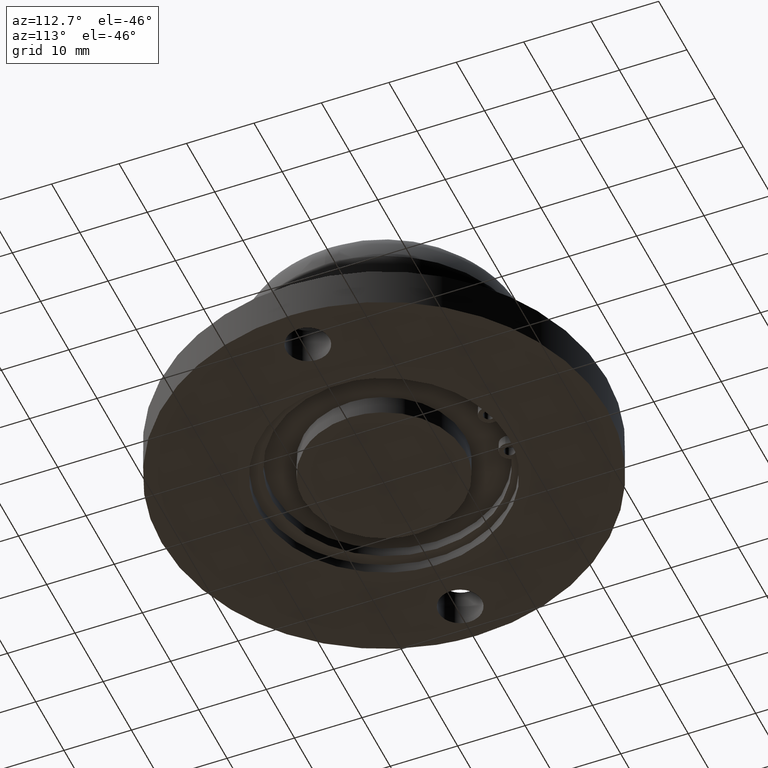
[diagram: clean part render]
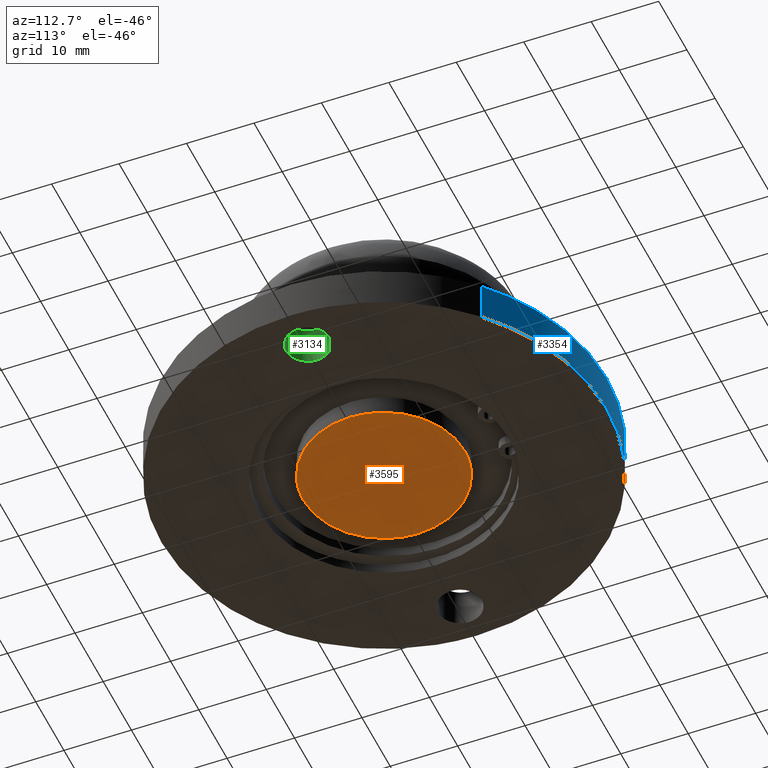
[diagram: same view with three faces highlighted in distinct colors, each labeled with its STEP entity id]
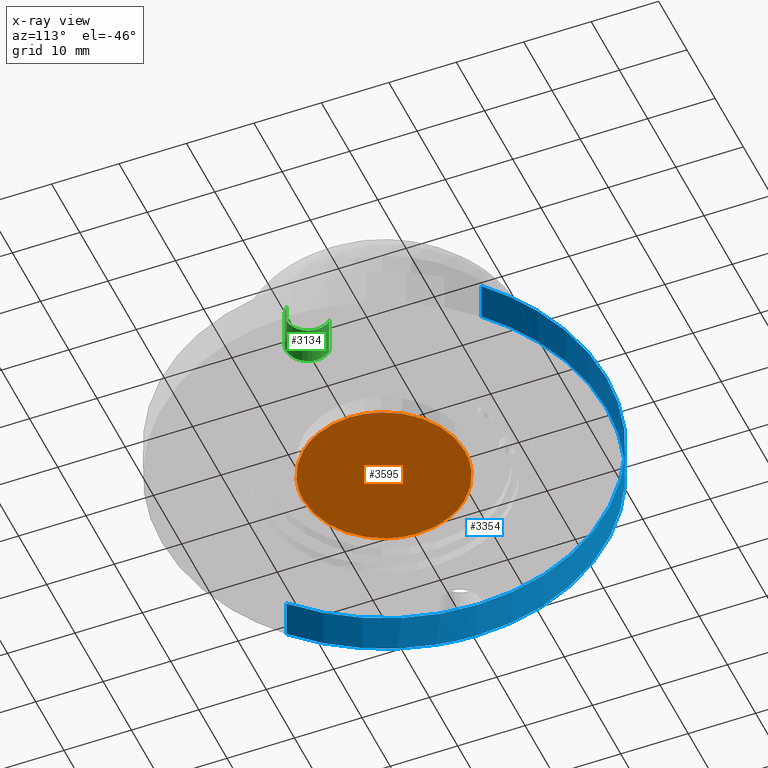
[diagram: x-ray of the same camera — body ghosted, the three highlighted faces saturated]
A machine part, auxiliary view with three faces highlighted in distinct colors.
The next image is the same camera in x-ray (body ghosted, the three faces saturated) — at least one of them is partly hidden behind the body in this view.
Their STEP definitions:

[orange] entity #3595 — the highlighted face is a freeform B-spline surface patch.
#3502=CARTESIAN_POINT('',(-13.199060758886739,-13.198799953483290,0.0));
#3503=CARTESIAN_POINT('',(13.198539791810109,-13.198799953483290,0.0));
#3504=CARTESIAN_POINT('',(-13.199060758886739,13.198800597213451,0.0));
#3505=CARTESIAN_POINT('',(13.198539791810109,13.198800597213451,0.0));
#3506=B_SPLINE_SURFACE_WITH_KNOTS('',1,1,((#3502,#3504),(#3503,#3505)),.UNSPECIFIED.,.F.,.F.,.U.,(2,2),(2,2),(0.0,26.397600550696851),(0.0,26.397600550696740),.UNSPECIFIED.);
#3507=CARTESIAN_POINT('',(11.999739194596600,0.0,0.0));
#3508=VERTEX_POINT('',#3507);
#3509=CARTESIAN_POINT('',(8.704231465674720,-8.260254693515538,6.274488E-012));
#3510=VERTEX_POINT('',#3509);
#3511=CARTESIAN_POINT('',(11.999739194596600,0.0,0.0));
#3512=CARTESIAN_POINT('',(11.999769506620220,-0.640588341469148,4.865908E-013));
#3513=CARTESIAN_POINT('',(11.885534226001839,-2.064129526454800,1.567912E-012));
#3514=CARTESIAN_POINT('',(11.325993103123180,-4.184766930128157,3.178748E-012));
#3515=CARTESIAN_POINT('',(10.277179170235550,-6.351381054032218,4.824508E-012));
#3516=CARTESIAN_POINT('',(9.292288182047884,-7.640788857671821,5.803942E-012));
#3517=CARTESIAN_POINT('',(8.704231465674720,-8.260254693515538,6.274488E-012));
#3518=B_SPLINE_CURVE_WITH_KNOTS('',3,(#3511,#3512,#3513,#3514,#3515,#3516,#3517),.UNSPECIFIED.,.F.,.U.,(4,1,1,1,4),(0.000000012991302,1.921771471087665,4.270615848810532,6.548265636913182,9.110631913254965),.UNSPECIFIED.);
#3519=EDGE_CURVE('',#3508,#3510,#3518,.T.);
#3520=ORIENTED_EDGE('',*,*,#3519,.T.);
#3521=CARTESIAN_POINT('',(-0.000261923768694,-11.999999999999950,0.0));
#3522=VERTEX_POINT('',#3521);
#3523=CARTESIAN_POINT('',(8.704231465674720,-8.260254693515538,6.274488E-012));
#3524=CARTESIAN_POINT('',(8.267810284854237,-8.720202786385279,5.959901E-012));
#3525=CARTESIAN_POINT('',(7.340742490855151,-9.553659731809912,5.291640E-012));
#3526=CARTESIAN_POINT('',(5.656675866899960,-10.649828889208591,4.077709E-012));
#3527=CARTESIAN_POINT('',(3.830878627039991,-11.434271443177190,2.761613E-012));
#3528=CARTESIAN_POINT('',(1.876502846603634,-11.901273365849899,1.352834E-012));
#3529=CARTESIAN_POINT('',(0.633785207336480,-12.000040251341609,4.570422E-013));
#3530=CARTESIAN_POINT('',(-0.000261923768694,-11.999999999999950,0.0));
#3531=B_SPLINE_CURVE_WITH_KNOTS('',3,(#3523,#3524,#3525,#3526,#3527,#3528,#3529,#3530),.UNSPECIFIED.,.F.,.U.,(4,1,1,1,1,4),(0.000000016002200,1.902138459309527,3.728203793991434,6.010750797407154,7.836816132092879,9.738954575404621),.UNSPECIFIED.);
#3532=EDGE_CURVE('',#3510,#3522,#3531,.T.);
#3533=ORIENTED_EDGE('',*,*,#3532,.T.);
#3534=CARTESIAN_POINT('',(-12.000260805403400,0.0,0.0));
#3535=VERTEX_POINT('',#3534);
#3536=CARTESIAN_POINT('',(-0.000261923768694,-11.999999999999950,0.0));
#3537=CARTESIAN_POINT('',(-0.834749976836407,-12.000114707203970,0.0));
#3538=CARTESIAN_POINT('',(-2.454587800815266,-11.830360732841950,0.0));
#3539=CARTESIAN_POINT('',(-4.523528357098026,-11.174948175156500,0.0));
#3540=CARTESIAN_POINT('',(-6.144450174818403,-10.346422295992530,0.0));
#3541=CARTESIAN_POINT('',(-7.563819043886565,-9.372659240958837,0.0));
#3542=CARTESIAN_POINT('',(-9.043870330893169,-7.997916396109868,0.0));
#3543=CARTESIAN_POINT('',(-10.370529628419259,-6.186021541827662,0.0));
#3544=CARTESIAN_POINT('',(-11.186844185401180,-4.445979735499319,0.0));
#3545=CARTESIAN_POINT('',(-11.818850228272989,-2.429695453660508,0.0));
#3546=CARTESIAN_POINT('',(-12.000596991536440,-1.030878108902278,0.0));
#3547=CARTESIAN_POINT('',(-12.000260805403400,0.0,0.0));
#3548=B_SPLINE_CURVE_WITH_KNOTS('',3,(#3536,#3537,#3538,#3539,#3540,#3541,#3542,#3543,#3544,#3545,#3546,#3547),.UNSPECIFIED.,.F.,.U.,(4,1,1,1,1,1,1,1,1,4),(0.000000056352135,2.503443077893721,4.859659420891150,6.479552820413295,7.952183326381755,10.013810310773470,12.517297471272620,14.652609782025390,15.757079846705221,18.849584860692921),.UNSPECIFIED.);
#3549=EDGE_CURVE('',#3522,#3535,#3548,.T.);
#3550=ORIENTED_EDGE('',*,*,#3549,.T.);
#3551=CARTESIAN_POINT('',(-8.704753076481516,8.260254693515535,6.274127E-012));
#3552=VERTEX_POINT('',#3551);
#3553=CARTESIAN_POINT('',(-12.000260805403400,0.0,0.0));
#3554=CARTESIAN_POINT('',(-12.000530301452759,1.020233914827308,7.749249E-013));
#3555=CARTESIAN_POINT('',(-11.802380037895190,2.562228656646946,1.946156E-012));
#3556=CARTESIAN_POINT('',(-11.113578797002971,4.638382809135803,3.523112E-012));
#3557=CARTESIAN_POINT('',(-10.205280787694090,6.446168654774205,4.896227E-012));
#3558=CARTESIAN_POINT('',(-9.292807301775879,7.640791460533624,5.803610E-012));
#3559=CARTESIAN_POINT('',(-8.704753076481516,8.260254693515535,6.274127E-012));
#3560=B_SPLINE_CURVE_WITH_KNOTS('',3,(#3553,#3554,#3555,#3556,#3557,#3558,#3559),.UNSPECIFIED.,.F.,.U.,(4,1,1,1,4),(0.000000012988782,3.060606293200248,4.626475775533781,6.548265636912778,9.110631913254963),.UNSPECIFIED.);
#3561=EDGE_CURVE('',#3535,#3552,#3560,.T.);
#3562=ORIENTED_EDGE('',*,*,#3561,.T.);
#3563=CARTESIAN_POINT('',(-0.000259687038084,11.999999999999950,0.0));
#3564=VERTEX_POINT('',#3563);
#3565=CARTESIAN_POINT('',(-8.704753076481516,8.260254693515535,6.274127E-012));
#3566=CARTESIAN_POINT('',(-8.268332124155659,8.720202631430817,5.959558E-012));
#3567=CARTESIAN_POINT('',(-7.341267192943831,9.553668083536861,5.291338E-012));
#3568=CARTESIAN_POINT('',(-5.955618045562906,10.455508149345960,4.292573E-012));
#3569=CARTESIAN_POINT('',(-4.263675692504653,11.273301015590400,3.073035E-012));
#3570=CARTESIAN_POINT('',(-2.333562479803368,11.852735560742859,1.681825E-012));
#3571=CARTESIAN_POINT('',(-0.735749463830196,12.000053487033639,5.301350E-013));
#3572=CARTESIAN_POINT('',(-0.000259687038084,11.999999999999950,0.0));
#3573=B_SPLINE_CURVE_WITH_KNOTS('',3,(#3565,#3566,#3567,#3568,#3569,#3570,#3571,#3572),.UNSPECIFIED.,.F.,.U.,(4,1,1,1,1,4),(0.000000016002421,1.902138459309613,3.728203793991460,4.945544595116354,7.532474160828555,9.738954575404637),.UNSPECIFIED.);
#3574=EDGE_CURVE('',#3552,#3564,#3573,.T.);
#3575=ORIENTED_EDGE('',*,*,#3574,.T.);
#3576=CARTESIAN_POINT('',(-0.000259687038084,11.999999999999950,0.0));
#3577=CARTESIAN_POINT('',(0.956952105756396,12.000210995640870,0.0));
#3578=CARTESIAN_POINT('',(2.699479755151951,11.790389079239450,0.0));
#3579=CARTESIAN_POINT('',(4.747305278960915,11.071748980130600,0.0));
#3580=CARTESIAN_POINT('',(6.245309207171212,10.276858495939900,0.0));
#3581=CARTESIAN_POINT('',(7.482189117395803,9.428298877222812,0.0));
#3582=CARTESIAN_POINT('',(8.576284040900218,8.436668861889485,0.0));
#3583=CARTESIAN_POINT('',(9.603519582891190,7.245811067221164,0.0));
#3584=CARTESIAN_POINT('',(10.396540199875391,6.058974271774098,0.0));
#3585=CARTESIAN_POINT('',(11.095233314186450,4.649435815830598,0.0));
#3586=CARTESIAN_POINT('',(11.583941014655680,3.256703503051852,0.0));
#3587=CARTESIAN_POINT('',(11.920066630764250,1.668956095298817,0.0));
#3588=CARTESIAN_POINT('',(11.999766005490590,0.589042810106029,0.0));
#3589=CARTESIAN_POINT('',(11.999739194596600,0.0,0.0));
#3590=B_SPLINE_CURVE_WITH_KNOTS('',3,(#3576,#3577,#3578,#3579,#3580,#3581,#3582,#3583,#3584,#3585,#3586,#3587,#3588,#3589),.UNSPECIFIED.,.F.,.U.,(4,1,1,1,1,1,1,1,1,1,1,4),(0.000000056355287,2.871609119497190,5.227818909152264,6.479552820415872,7.952183326383914,9.719292726476958,10.897406829650130,12.664557534791321,13.989925818681559,15.609819783243900,17.082455805738860,18.849584860692921),.UNSPECIFIED.);
#3591=EDGE_CURVE('',#3564,#3508,#3590,.T.);
#3592=ORIENTED_EDGE('',*,*,#3591,.T.);
#3593=EDGE_LOOP('',(#3520,#3533,#3550,#3562,#3575,#3592));
#3594=FACE_OUTER_BOUND('',#3593,.T.);
#3595=ADVANCED_FACE('',(#3594),#3506,.F.);

[blue] entity #3354 — the highlighted face is a freeform B-spline surface patch.
#2665=CARTESIAN_POINT('',(-22.715701011204359,-23.937354230774321,6.0));
#2666=VERTEX_POINT('',#2665);
#2667=CARTESIAN_POINT('',(-33.0,0.0,6.0));
#2668=VERTEX_POINT('',#2667);
#2669=CARTESIAN_POINT('',(-22.715701011204359,-23.937354230774321,6.0));
#2670=CARTESIAN_POINT('',(-23.727545687962319,-22.977192181324209,6.000000000000001));
#2671=CARTESIAN_POINT('',(-25.819437198400720,-20.723453593423919,6.000000000000014));
#2672=CARTESIAN_POINT('',(-28.499168599710028,-16.878723120920501,5.999999999999951));
#2673=CARTESIAN_POINT('',(-30.484718431902738,-12.867714704794180,6.000000000000048));
#2674=CARTESIAN_POINT('',(-31.945424408996640,-8.642922183823499,5.999999999999946));
#2675=CARTESIAN_POINT('',(-32.805214898512233,-4.463688439531518,5.999999999999975));
#2676=CARTESIAN_POINT('',(-33.000029471393518,-1.394895411207826,6.000000000000029));
#2677=CARTESIAN_POINT('',(-33.0,0.0,6.0));
#2678=B_SPLINE_CURVE_WITH_KNOTS('',3,(#2669,#2670,#2671,#2672,#2673,#2674,#2675,#2676,#2677),.UNSPECIFIED.,.F.,.U.,(4,1,1,1,1,1,4),(5.288054E-009,4.184699154814062,9.206361960283800,14.018754858231370,17.575760259333759,22.597423064802960,26.782122214327980),.UNSPECIFIED.);
#2679=EDGE_CURVE('',#2666,#2668,#2678,.T.);
#2717=CARTESIAN_POINT('',(22.715701011204359,23.937354230774321,6.0));
#2718=VERTEX_POINT('',#2717);
#2731=CARTESIAN_POINT('',(0.0,33.0,6.0));
#2732=VERTEX_POINT('',#2731);
#2733=CARTESIAN_POINT('',(0.0,33.0,6.0));
#2734=CARTESIAN_POINT('',(1.892121449207995,33.000145340063597,6.000000000000018));
#2735=CARTESIAN_POINT('',(5.611067501391730,32.679304628810129,5.999999999999988));
#2736=CARTESIAN_POINT('',(10.299142452665230,31.456986520141282,5.999999999999969));
#2737=CARTESIAN_POINT('',(14.591799108319400,29.699928398649281,6.000000000000052));
#2738=CARTESIAN_POINT('',(18.632982278486899,27.407347246962239,5.999999999999973));
#2739=CARTESIAN_POINT('',(21.390631886238481,25.194999419627120,6.000000000000010));
#2740=CARTESIAN_POINT('',(22.715701011204359,23.937354230774321,6.0));
#2741=B_SPLINE_CURVE_WITH_KNOTS('',3,(#2733,#2734,#2735,#2736,#2737,#2738,#2739,#2740),.UNSPECIFIED.,.F.,.U.,(4,1,1,1,1,4),(6.168452E-009,5.676349715870273,11.156973427126260,14.484472865986620,19.573625836225609,25.054238157011380),.UNSPECIFIED.);
#2742=EDGE_CURVE('',#2732,#2718,#2741,.T.);
#2744=CARTESIAN_POINT('',(-33.0,0.0,6.0));
#2745=CARTESIAN_POINT('',(-33.000084975756593,1.619880493533486,5.999999999999996));
#2746=CARTESIAN_POINT('',(-32.790839110131259,4.454647009926852,6.000000000000015));
#2747=CARTESIAN_POINT('',(-32.002348049379243,8.295234686835586,5.999999999999996));
#2748=CARTESIAN_POINT('',(-30.839088724708500,11.967260873298070,5.999999999999976));
#2749=CARTESIAN_POINT('',(-29.019969045582350,15.971557882591750,6.0));
#2750=CARTESIAN_POINT('',(-26.472144831882090,19.887706562779851,5.999999999999996));
#2751=CARTESIAN_POINT('',(-23.669698504093869,23.096379287234100,6.000000000000006));
#2752=CARTESIAN_POINT('',(-20.673374809154609,25.828928222349418,6.000000000000018));
#2753=CARTESIAN_POINT('',(-17.030164480602650,28.411597413814480,5.999999999999972));
#2754=CARTESIAN_POINT('',(-12.373200933704540,30.755831574109209,6.000000000000109));
#2755=CARTESIAN_POINT('',(-7.779076008853582,32.180229752936008,5.999999999999887));
#2756=CARTESIAN_POINT('',(-3.577222442578980,32.869375442400177,6.000000000000139));
#2757=CARTESIAN_POINT('',(-1.214905721580196,33.000027933515831,5.999999999999855));
#2758=CARTESIAN_POINT('',(0.0,33.0,6.0));
#2759=B_SPLINE_CURVE_WITH_KNOTS('',3,(#2744,#2745,#2746,#2747,#2748,#2749,#2750,#2751,#2752,#2753,#2754,#2755,#2756,#2757,#2758),.UNSPECIFIED.,.F.,.U.,(4,1,1,1,1,1,1,1,1,1,1,1,4),(0.000000015501030,4.859635288709626,8.504392075312595,11.744175267523790,16.401358986204279,21.665995563140850,25.715704729374579,29.157926366059382,33.815113744339470,39.079756835747560,44.749366626352540,48.191640099629012,51.836360100306543),.UNSPECIFIED.);
#2760=EDGE_CURVE('',#2668,#2732,#2759,.T.);
#3214=CARTESIAN_POINT('',(22.715701011370630,23.937354230616521,1.804112E-016));
#3215=VERTEX_POINT('',#3214);
#3230=CARTESIAN_POINT('',(22.715701011204359,23.937354230774321,6.0));
#3231=CARTESIAN_POINT('',(22.715701011370630,23.937354230616521,1.804112E-016));
#3232=QUASI_UNIFORM_CURVE('',1,(#3230,#3231),.UNSPECIFIED.,.F.,.U.);
#3233=EDGE_CURVE('',#2718,#3215,#3232,.T.);
#3238=CARTESIAN_POINT('',(-22.715701011370630,-23.937354230616521,8.743006E-016));
#3239=VERTEX_POINT('',#3238);
#3240=CARTESIAN_POINT('',(-22.715701011204359,-23.937354230774321,6.0));
#3241=CARTESIAN_POINT('',(-22.715701011370630,-23.937354230616521,8.743006E-016));
#3242=QUASI_UNIFORM_CURVE('',1,(#3240,#3241),.UNSPECIFIED.,.F.,.U.);
#3243=EDGE_CURVE('',#2666,#3239,#3242,.T.);
#3282=CARTESIAN_POINT('',(-22.715700997893880,-23.937354243405490,6.150000000000000));
#3283=CARTESIAN_POINT('',(-46.653055241299363,-1.221653245511607,6.150000000000000));
#3284=CARTESIAN_POINT('',(-23.937354243405490,22.715700997893880,6.150000000000000));
#3285=CARTESIAN_POINT('',(-1.221653245511607,46.653055241299363,6.150000000000000));
#3286=CARTESIAN_POINT('',(22.715700997893880,23.937354243405490,6.150000000000000));
#3287=CARTESIAN_POINT('',(-22.715700997893880,-23.937354243405490,-0.153750000000001));
#3288=CARTESIAN_POINT('',(-46.653055241299363,-1.221653245511607,-0.153750000000000));
#3289=CARTESIAN_POINT('',(-23.937354243405490,22.715700997893880,-0.153750000000001));
#3290=CARTESIAN_POINT('',(-1.221653245511607,46.653055241299363,-0.153750000000000));
#3291=CARTESIAN_POINT('',(22.715700997893880,23.937354243405490,-0.153750000000001));
#3299=(BOUNDED_SURFACE()B_SPLINE_SURFACE(2,1,((#3282,#3287),(#3283,#3288),(#3284,#3289),(#3285,#3290),(#3286,#3291)),.UNSPECIFIED.,.F.,.F.,.U.)B_SPLINE_SURFACE_WITH_KNOTS((3,2,3),(2,2),(0.0,54.676190233248548,109.352380466497100),(0.0,6.303750000000002),.UNSPECIFIED.)GEOMETRIC_REPRESENTATION_ITEM()RATIONAL_B_SPLINE_SURFACE(((1.0,1.0),(0.707106781186548,0.707106781186548),(1.0,1.0),(0.707106781186548,0.707106781186548),(1.0,1.0)))REPRESENTATION_ITEM('')SURFACE());
#3300=CARTESIAN_POINT('',(0.0,33.0,0.0));
#3301=VERTEX_POINT('',#3300);
#3302=CARTESIAN_POINT('',(0.0,33.0,0.0));
#3303=CARTESIAN_POINT('',(1.892122062530927,33.000145603956007,1.502750E-017));
#3304=CARTESIAN_POINT('',(5.611062343726955,32.679294993812242,4.456383E-017));
#3305=CARTESIAN_POINT('',(10.299159021391651,31.457021237763140,8.179735E-017));
#3306=CARTESIAN_POINT('',(13.866234607534190,29.996801814550491,1.101276E-016));
#3307=CARTESIAN_POINT('',(16.819603305654429,28.457632699554850,1.335836E-016));
#3308=CARTESIAN_POINT('',(19.769381687272901,26.519639452069828,1.570112E-016));
#3309=CARTESIAN_POINT('',(21.769178314108110,24.835614892847371,1.728938E-016));
#3310=CARTESIAN_POINT('',(22.715701011370630,23.937354230616521,1.804112E-016));
#3311=B_SPLINE_CURVE_WITH_KNOTS('',3,(#3302,#3303,#3304,#3305,#3306,#3307,#3308,#3309,#3310),.UNSPECIFIED.,.F.,.U.,(4,1,1,1,1,1,4),(6.169245E-009,5.676349715922751,11.156973427228550,14.484472866119241,17.224788385738631,21.139520233687641,25.054238157240601),.UNSPECIFIED.);
#3312=EDGE_CURVE('',#3301,#3215,#3311,.T.);
#3313=ORIENTED_EDGE('',*,*,#3312,.F.);
#3314=CARTESIAN_POINT('',(-33.0,0.0,0.0));
#3315=VERTEX_POINT('',#3314);
#3316=CARTESIAN_POINT('',(-33.0,0.0,0.0));
#3317=CARTESIAN_POINT('',(-33.000084725444253,1.619880334062912,0.0));
#3318=CARTESIAN_POINT('',(-32.790839823035917,4.454647460412013,0.0));
#3319=CARTESIAN_POINT('',(-32.002349321270167,8.295235502712320,0.0));
#3320=CARTESIAN_POINT('',(-30.839100201331060,11.967267733286199,0.0));
#3321=CARTESIAN_POINT('',(-29.243794678291721,15.478682791149600,0.0));
#3322=CARTESIAN_POINT('',(-27.364269430757741,18.528803556647890,0.0));
#3323=CARTESIAN_POINT('',(-25.498224840605310,21.012872400101060,0.0));
#3324=CARTESIAN_POINT('',(-23.469929829281480,23.278538270371580,0.0));
#3325=CARTESIAN_POINT('',(-20.673381326478850,25.828935744207900,0.0));
#3326=CARTESIAN_POINT('',(-17.030164516252849,28.411604902345012,0.0));
#3327=CARTESIAN_POINT('',(-13.098946492752621,30.390432832160670,0.0));
#3328=CARTESIAN_POINT('',(-9.464285820525529,31.665677222149132,0.0));
#3329=CARTESIAN_POINT('',(-5.332017645028545,32.687384171966897,0.0));
#3330=CARTESIAN_POINT('',(-2.159868866260092,33.000323058795601,0.0));
#3331=CARTESIAN_POINT('',(0.0,33.0,0.0));
#3332=B_SPLINE_CURVE_WITH_KNOTS('',3,(#3316,#3317,#3318,#3319,#3320,#3321,#3322,#3323,#3324,#3325,#3326,#3327,#3328,#3329,#3330,#3331),.UNSPECIFIED.,.F.,.U.,(4,1,1,1,1,1,1,1,1,1,1,1,1,4),(0.000000015501030,4.859635288709626,8.504392075312595,11.744175267523790,16.401358986204279,20.046113218051818,22.475949112634559,25.715704729374579,29.157926366059382,33.815113744339470,39.079756835747560,42.319529237805099,45.356833688028530,51.836360100306543),.UNSPECIFIED.);
#3333=EDGE_CURVE('',#3315,#3301,#3332,.T.);
#3334=ORIENTED_EDGE('',*,*,#3333,.F.);
#3335=CARTESIAN_POINT('',(-22.715701011370630,-23.937354230616521,8.743006E-016));
#3336=CARTESIAN_POINT('',(-24.031170725825959,-22.689203174787149,8.287125E-016));
#3337=CARTESIAN_POINT('',(-25.989229712299270,-20.497143717986042,7.486486E-016));
#3338=CARTESIAN_POINT('',(-28.615745221274281,-16.624942410567439,6.072182E-016));
#3339=CARTESIAN_POINT('',(-30.502005271226889,-12.874758154101791,4.702445E-016));
#3340=CARTESIAN_POINT('',(-31.846641618145391,-8.903941283869910,3.252123E-016));
#3341=CARTESIAN_POINT('',(-32.757893603270993,-4.742617736755219,1.732219E-016));
#3342=CARTESIAN_POINT('',(-33.000154971628952,-1.813381649092829,6.623291E-017));
#3343=CARTESIAN_POINT('',(-33.0,0.0,0.0));
#3344=B_SPLINE_CURVE_WITH_KNOTS('',3,(#3335,#3336,#3337,#3338,#3339,#3340,#3341,#3342,#3343),.UNSPECIFIED.,.F.,.U.,(4,1,1,1,1,1,4),(5.288484E-009,5.440118360695575,8.787889125909757,14.018754858111160,17.994233093478080,21.342003858692131,26.782122214098742),.UNSPECIFIED.);
#3345=EDGE_CURVE('',#3239,#3315,#3344,.T.);
#3346=ORIENTED_EDGE('',*,*,#3345,.F.);
#3347=ORIENTED_EDGE('',*,*,#3243,.F.);
#3348=ORIENTED_EDGE('',*,*,#2679,.T.);
#3349=ORIENTED_EDGE('',*,*,#2760,.T.);
#3350=ORIENTED_EDGE('',*,*,#2742,.T.);
#3351=ORIENTED_EDGE('',*,*,#3233,.T.);
#3352=EDGE_LOOP('',(#3313,#3334,#3346,#3347,#3348,#3349,#3350,#3351));
#3353=FACE_OUTER_BOUND('',#3352,.T.);
#3354=ADVANCED_FACE('',(#3353),#3299,.T.);

[green] entity #3134 — the highlighted face is a freeform B-spline surface patch.
#2772=CARTESIAN_POINT('',(26.999738489760460,-3.199999999999923,6.0));
#2773=VERTEX_POINT('',#2772);
#2774=CARTESIAN_POINT('',(23.799739194596601,0.0,6.0));
#2775=VERTEX_POINT('',#2774);
#2776=CARTESIAN_POINT('',(26.999738489760460,-3.199999999999923,6.0));
#2777=CARTESIAN_POINT('',(26.606978456571920,-3.200355969982061,5.999999999999975));
#2778=CARTESIAN_POINT('',(25.978948504803490,-3.082796995159897,6.000000000000027));
#2779=CARTESIAN_POINT('',(25.184001340299162,-2.670320173602636,5.999999999999986));
#2780=CARTESIAN_POINT('',(24.684682805898390,-2.239590458783998,5.999999999999966));
#2781=CARTESIAN_POINT('',(24.313263116846841,-1.763572762672559,6.000000000000060));
#2782=CARTESIAN_POINT('',(24.034463335086919,-1.257140200881898,5.999999999999914));
#2783=CARTESIAN_POINT('',(23.843572102089041,-0.654494000982899,6.000000000000028));
#2784=CARTESIAN_POINT('',(23.799715589807441,-0.209438139322652,6.000000000000020));
#2785=CARTESIAN_POINT('',(23.799739194596601,0.0,6.0));
#2786=B_SPLINE_CURVE_WITH_KNOTS('',3,(#2776,#2777,#2778,#2779,#2780,#2781,#2782,#2783,#2784,#2785),.UNSPECIFIED.,.F.,.U.,(4,1,1,1,1,1,1,4),(0.000000112598693,1.178103339651104,1.884973869564795,2.670343703100102,3.141606085947435,3.691393063913455,4.398263050459877,5.026579387950630),.UNSPECIFIED.);
#2787=EDGE_CURVE('',#2773,#2775,#2786,.T.);
#2789=CARTESIAN_POINT('',(24.678541274438601,2.202734457273921,5.999999999999999));
#2790=VERTEX_POINT('',#2789);
#2791=CARTESIAN_POINT('',(23.799739194596601,0.0,6.0));
#2792=CARTESIAN_POINT('',(23.799609910615128,0.316349481071448,6.000000000000007));
#2793=CARTESIAN_POINT('',(23.884856597118059,0.885703527513066,6.000000000000004));
#2794=CARTESIAN_POINT('',(24.213886957369429,1.631924274177175,5.999999999999987));
#2795=CARTESIAN_POINT('',(24.513011811631358,2.028369298145825,6.000000000000016));
#2796=CARTESIAN_POINT('',(24.678541274438601,2.202734457273921,5.999999999999999));
#2797=B_SPLINE_CURVE_WITH_KNOTS('',3,(#2791,#2792,#2793,#2794,#2795,#2796),.UNSPECIFIED.,.F.,.U.,(4,1,1,4),(0.000000024277051,0.949030314193154,1.708248348547052,2.429512408770562),.UNSPECIFIED.);
#2798=EDGE_CURVE('',#2775,#2790,#2797,.T.);
#2826=CARTESIAN_POINT('',(29.320937114754599,-2.202734457273923,6.0));
#2827=VERTEX_POINT('',#2826);
#2837=CARTESIAN_POINT('',(29.320937114754599,-2.202734457273923,6.0));
#2838=CARTESIAN_POINT('',(29.116173405431560,-2.418682021960286,6.000000000000011));
#2839=CARTESIAN_POINT('',(28.677856843918061,-2.767179395714575,5.999999999999982));
#2840=CARTESIAN_POINT('',(27.878886825007228,-3.116487501719108,6.000000000000024));
#2841=CARTESIAN_POINT('',(27.310863008084489,-3.200137534348100,5.999999999999980));
#2842=CARTESIAN_POINT('',(26.999738489760460,-3.199999999999923,6.0));
#2843=B_SPLINE_CURVE_WITH_KNOTS('',3,(#2837,#2838,#2839,#2840,#2841,#2842),.UNSPECIFIED.,.F.,.U.,(4,1,1,4),(0.000000029972997,0.892743678226495,1.663739426242091,2.597068048157693),.UNSPECIFIED.);
#2844=EDGE_CURVE('',#2827,#2773,#2843,.T.);
#3062=CARTESIAN_POINT('',(29.320937181835919,-2.202734642220012,6.150000000000000));
#3063=CARTESIAN_POINT('',(27.118202539615915,-4.523932629459333,6.150000000000000));
#3064=CARTESIAN_POINT('',(24.797004552376588,-2.321197987239320,6.150000000000000));
#3065=CARTESIAN_POINT('',(22.475806565137269,-0.118463345019308,6.150000000000000));
#3066=CARTESIAN_POINT('',(24.678541207357281,2.202734642220012,6.150000000000000));
#3067=CARTESIAN_POINT('',(29.320937181835919,-2.202734642220012,-0.153750000000001));
#3068=CARTESIAN_POINT('',(27.118202539615915,-4.523932629459333,-0.153750000000000));
#3069=CARTESIAN_POINT('',(24.797004552376588,-2.321197987239320,-0.153750000000001));
#3070=CARTESIAN_POINT('',(22.475806565137269,-0.118463345019308,-0.153750000000000));
#3071=CARTESIAN_POINT('',(24.678541207357281,2.202734642220012,-0.153750000000001));
#3079=(BOUNDED_SURFACE()B_SPLINE_SURFACE(2,1,((#3062,#3067),(#3063,#3068),(#3064,#3069),(#3065,#3070),(#3066,#3071)),.UNSPECIFIED.,.F.,.F.,.U.)B_SPLINE_SURFACE_WITH_KNOTS((3,2,3),(2,2),(0.0,5.301933598375616,10.603867196751230),(0.0,6.303750000000002),.UNSPECIFIED.)GEOMETRIC_REPRESENTATION_ITEM()RATIONAL_B_SPLINE_SURFACE(((1.0,1.0),(0.707106781186548,0.707106781186548),(1.0,1.0),(0.707106781186548,0.707106781186548),(1.0,1.0)))REPRESENTATION_ITEM('')SURFACE());
#3080=CARTESIAN_POINT('',(29.320937115500879,-2.202734456487513,1.105602E-012));
#3081=VERTEX_POINT('',#3080);
#3082=CARTESIAN_POINT('',(26.999738489760460,-3.199999999999923,0.0));
#3083=VERTEX_POINT('',#3082);
#3084=CARTESIAN_POINT('',(29.320937115500879,-2.202734456487513,1.105602E-012));
#3085=CARTESIAN_POINT('',(29.060417089586970,-2.477683606626087,9.815144E-013));
#3086=CARTESIAN_POINT('',(28.517722643236102,-2.876157588129889,7.230256E-013));
#3087=CARTESIAN_POINT('',(27.689585446735169,-3.153591947547583,3.285785E-013));
#3088=CARTESIAN_POINT('',(27.202629968034952,-3.200010430076657,9.663852E-014));
#3089=CARTESIAN_POINT('',(26.999738489760460,-3.199999999999923,0.0));
#3090=B_SPLINE_CURVE_WITH_KNOTS('',3,(#3084,#3085,#3086,#3087,#3088,#3089),.UNSPECIFIED.,.F.,.U.,(4,1,1,4),(0.000000029971185,1.136230296077762,1.988380804116844,2.597068049241858),.UNSPECIFIED.);
#3091=EDGE_CURVE('',#3081,#3083,#3090,.T.);
#3092=ORIENTED_EDGE('',*,*,#3091,.T.);
#3093=CARTESIAN_POINT('',(23.799739194596601,0.0,0.0));
#3094=VERTEX_POINT('',#3093);
#3095=CARTESIAN_POINT('',(26.999738489760460,-3.199999999999923,0.0));
#3096=CARTESIAN_POINT('',(26.606978034106952,-3.200360589470416,0.0));
#3097=CARTESIAN_POINT('',(25.978948858715281,-3.082793149190955,0.0));
#3098=CARTESIAN_POINT('',(25.184001091561470,-2.670322794203111,0.0));
#3099=CARTESIAN_POINT('',(24.684682920105359,-2.239589277666354,0.0));
#3100=CARTESIAN_POINT('',(24.313263094432820,-1.763572959014281,0.0));
#3101=CARTESIAN_POINT('',(24.034463339929591,-1.257140184453746,0.0));
#3102=CARTESIAN_POINT('',(23.843572100027529,-0.654494007976377,0.0));
#3103=CARTESIAN_POINT('',(23.799715590182409,-0.209438138050589,0.0));
#3104=CARTESIAN_POINT('',(23.799739194596601,0.0,0.0));
#3105=B_SPLINE_CURVE_WITH_KNOTS('',3,(#3095,#3096,#3097,#3098,#3099,#3100,#3101,#3102,#3103,#3104),.UNSPECIFIED.,.F.,.U.,(4,1,1,1,1,1,1,4),(0.000000112598693,1.178103339651104,1.884973869564795,2.670343703100102,3.141606085947435,3.691393063913455,4.398263050459877,5.026579387950630),.UNSPECIFIED.);
#3106=EDGE_CURVE('',#3083,#3094,#3105,.T.);
#3107=ORIENTED_EDGE('',*,*,#3106,.T.);
#3108=CARTESIAN_POINT('',(24.678541273692328,2.202734456487511,1.104908E-012));
#3109=VERTEX_POINT('',#3108);
#3110=CARTESIAN_POINT('',(23.799739194596601,0.0,0.0));
#3111=CARTESIAN_POINT('',(23.799465692194730,0.379657484829635,1.904390E-013));
#3112=CARTESIAN_POINT('',(23.902271103925461,0.948848962381507,4.759496E-013));
#3113=CARTESIAN_POINT('',(24.252268345726861,1.682744159861128,8.440769E-013));
#3114=CARTESIAN_POINT('',(24.513017497859369,2.028365194276403,1.017443E-012));
#3115=CARTESIAN_POINT('',(24.678541273692328,2.202734456487511,1.104908E-012));
#3116=B_SPLINE_CURVE_WITH_KNOTS('',3,(#3110,#3111,#3112,#3113,#3114,#3115),.UNSPECIFIED.,.F.,.U.,(4,1,1,4),(0.000000024275328,1.138840431138938,1.708248347784222,2.429512407686412),.UNSPECIFIED.);
#3117=EDGE_CURVE('',#3094,#3109,#3116,.T.);
#3118=ORIENTED_EDGE('',*,*,#3117,.T.);
#3119=CARTESIAN_POINT('',(24.678541274438601,2.202734457273921,5.999999999999999));
#3120=CARTESIAN_POINT('',(24.678541273692328,2.202734456487511,1.104908E-012));
#3121=QUASI_UNIFORM_CURVE('',1,(#3119,#3120),.UNSPECIFIED.,.F.,.U.);
#3122=EDGE_CURVE('',#2790,#3109,#3121,.T.);
#3123=ORIENTED_EDGE('',*,*,#3122,.F.);
#3124=ORIENTED_EDGE('',*,*,#2798,.F.);
#3125=ORIENTED_EDGE('',*,*,#2787,.F.);
#3126=ORIENTED_EDGE('',*,*,#2844,.F.);
#3127=CARTESIAN_POINT('',(29.320937114754599,-2.202734457273923,6.0));
#3128=CARTESIAN_POINT('',(29.320937115500879,-2.202734456487513,1.105602E-012));
#3129=QUASI_UNIFORM_CURVE('',1,(#3127,#3128),.UNSPECIFIED.,.F.,.U.);
#3130=EDGE_CURVE('',#2827,#3081,#3129,.T.);
#3131=ORIENTED_EDGE('',*,*,#3130,.T.);
#3132=EDGE_LOOP('',(#3092,#3107,#3118,#3123,#3124,#3125,#3126,#3131));
#3133=FACE_OUTER_BOUND('',#3132,.T.);
#3134=ADVANCED_FACE('',(#3133),#3079,.F.);